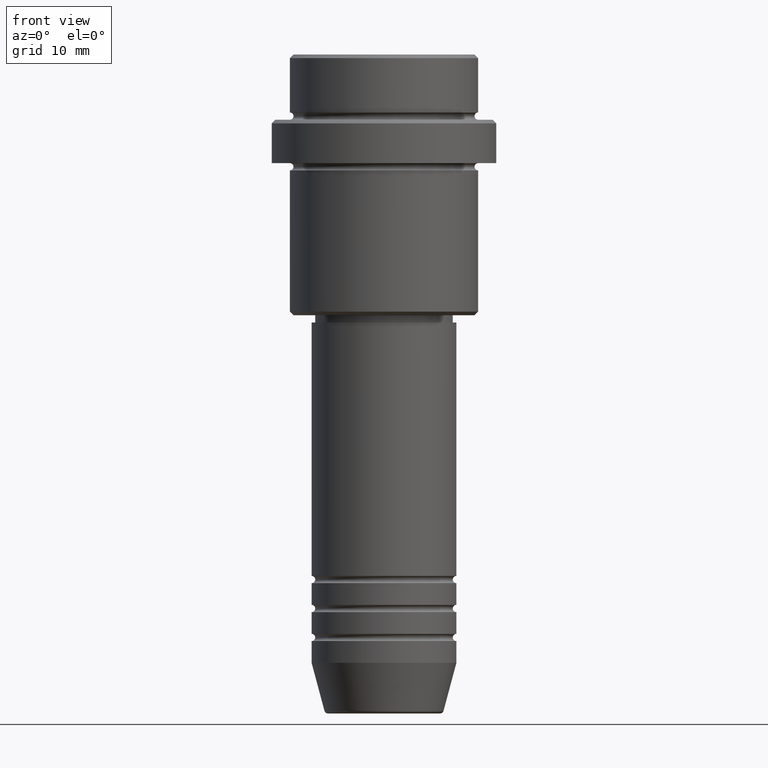
[diagram: clean part render]
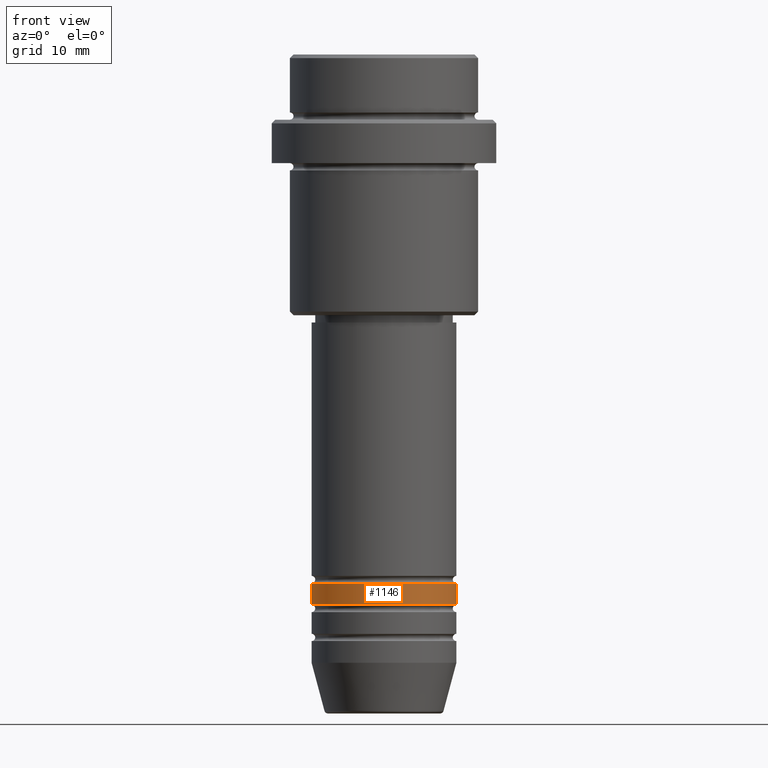
[diagram: same view with one face highlighted and labeled with its STEP entity id]
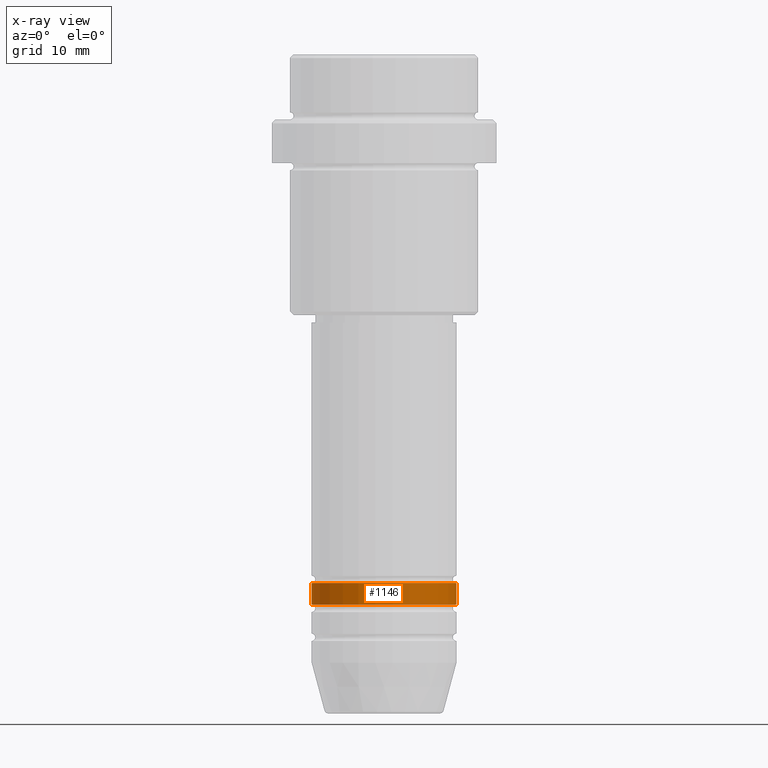
[diagram: x-ray of the same camera — body ghosted, the highlighted face saturated]
A machine part, front view. The second image highlights one B-rep face of the part: STEP entity #1146.
The next image is the same camera in x-ray: the body ghosted, the highlighted face saturated — about 0% of this face is hidden behind the body in this view.
In plain terms, the highlighted cylindrical surface (partial cylindrical patch) has radius 10 mm, axis along (-0, -0, 1).
Its self-contained STEP definition (entity closure, byte-faithful):
#4 = CARTESIAN_POINT ( 'NONE',  ( 0.000000000000000000, 0.000000000000000000, 0.000000000000000000 ) ) ;
#30 = CARTESIAN_POINT ( 'NONE',  ( 10.00000000000000000, 0.000000000000000000, 0.000000000000000000 ) ) ;
#55 = CIRCLE ( 'NONE', #380, 10.00000000000000000 ) ;
#172 = EDGE_CURVE ( 'NONE', #775, #1236, #1016, .T. ) ;
#188 = EDGE_CURVE ( 'NONE', #489, #401, #466, .T. ) ;
#213 = DIRECTION ( 'NONE',  ( 1.000000000000000000, 0.000000000000000000, 0.000000000000000000 ) ) ;
#350 = CARTESIAN_POINT ( 'NONE',  ( -10.00000000000000000, 1.224646799147353256E-15, 0.000000000000000000 ) ) ;
#371 = EDGE_LOOP ( 'NONE', ( #600, #1018, #1369, #394 ) ) ;
#378 = CARTESIAN_POINT ( 'NONE',  ( -10.00000000000000000, 1.224646799147353256E-15, -72.99999999999987210 ) ) ;
#380 = AXIS2_PLACEMENT_3D ( 'NONE', #962, #738, #213 ) ;
#394 = ORIENTED_EDGE ( 'NONE', *, *, #1282, .F. ) ;
#401 = VERTEX_POINT ( 'NONE', #378 ) ;
#452 = AXIS2_PLACEMENT_3D ( 'NONE', #906, #484, #1354 ) ;
#466 = LINE ( 'NONE', #350, #476 ) ;
#476 = VECTOR ( 'NONE', #1220, 1000.000000000000000 ) ;
#484 = DIRECTION ( 'NONE',  ( -0.000000000000000000, -0.000000000000000000, 1.000000000000000000 ) ) ;
#489 = VERTEX_POINT ( 'NONE', #1301 ) ;
#570 = DIRECTION ( 'NONE',  ( -0.000000000000000000, -0.000000000000000000, 1.000000000000000000 ) ) ;
#600 = ORIENTED_EDGE ( 'NONE', *, *, #188, .F. ) ;
#665 = FACE_OUTER_BOUND ( 'NONE', #371, .T. ) ;
#738 = DIRECTION ( 'NONE',  ( -0.000000000000000000, -0.000000000000000000, 1.000000000000000000 ) ) ;
#775 = VERTEX_POINT ( 'NONE', #1254 ) ;
#889 = AXIS2_PLACEMENT_3D ( 'NONE', #4, #570, #1320 ) ;
#906 = CARTESIAN_POINT ( 'NONE',  ( 0.000000000000000000, 0.000000000000000000, -72.99999999999987210 ) ) ;
#921 = CARTESIAN_POINT ( 'NONE',  ( 10.00000000000000000, 0.000000000000000000, -72.99999999999987210 ) ) ;
#962 = CARTESIAN_POINT ( 'NONE',  ( 0.000000000000000000, 0.000000000000000000, -75.99999999999987210 ) ) ;
#983 = EDGE_CURVE ( 'NONE', #489, #775, #55, .T. ) ;
#992 = CYLINDRICAL_SURFACE ( 'NONE', #889, 10.00000000000000000 ) ;
#1016 = LINE ( 'NONE', #30, #1090 ) ;
#1018 = ORIENTED_EDGE ( 'NONE', *, *, #983, .T. ) ;
#1067 = CIRCLE ( 'NONE', #452, 10.00000000000000000 ) ;
#1090 = VECTOR ( 'NONE', #1107, 1000.000000000000000 ) ;
#1107 = DIRECTION ( 'NONE',  ( -0.000000000000000000, -0.000000000000000000, 1.000000000000000000 ) ) ;
#1146 = ADVANCED_FACE ( 'NONE', ( #665 ), #992, .T. ) ;
#1220 = DIRECTION ( 'NONE',  ( -0.000000000000000000, -0.000000000000000000, 1.000000000000000000 ) ) ;
#1236 = VERTEX_POINT ( 'NONE', #921 ) ;
#1254 = CARTESIAN_POINT ( 'NONE',  ( 10.00000000000000000, 0.000000000000000000, -75.99999999999987210 ) ) ;
#1282 = EDGE_CURVE ( 'NONE', #401, #1236, #1067, .T. ) ;
#1301 = CARTESIAN_POINT ( 'NONE',  ( -10.00000000000000000, 1.224646799147353256E-15, -75.99999999999987210 ) ) ;
#1320 = DIRECTION ( 'NONE',  ( 1.000000000000000000, 0.000000000000000000, 0.000000000000000000 ) ) ;
#1354 = DIRECTION ( 'NONE',  ( 1.000000000000000000, 0.000000000000000000, 0.000000000000000000 ) ) ;
#1369 = ORIENTED_EDGE ( 'NONE', *, *, #172, .T. ) ;